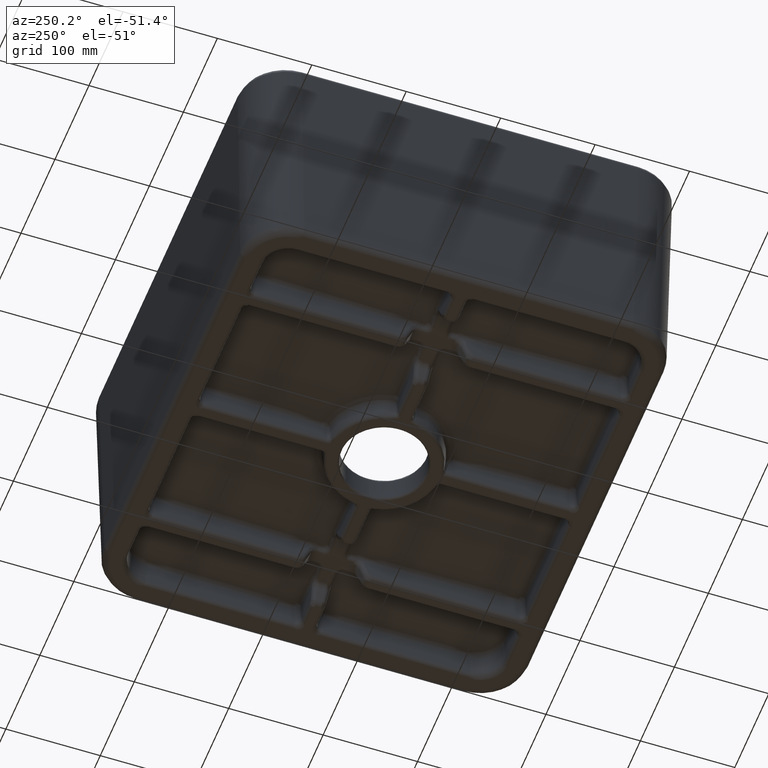
[diagram: clean part render]
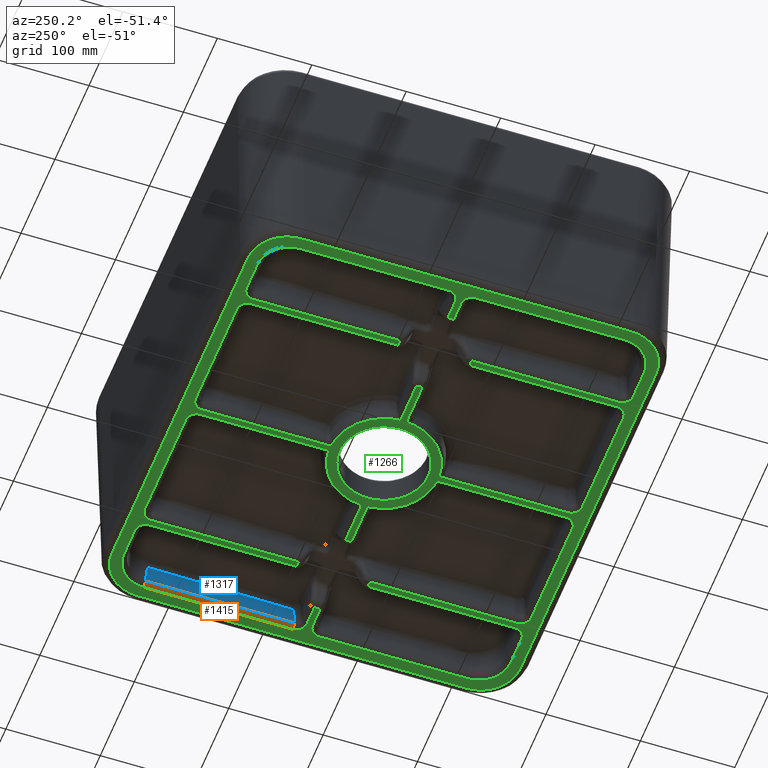
[diagram: same view with three faces highlighted in distinct colors, each labeled with its STEP entity id]
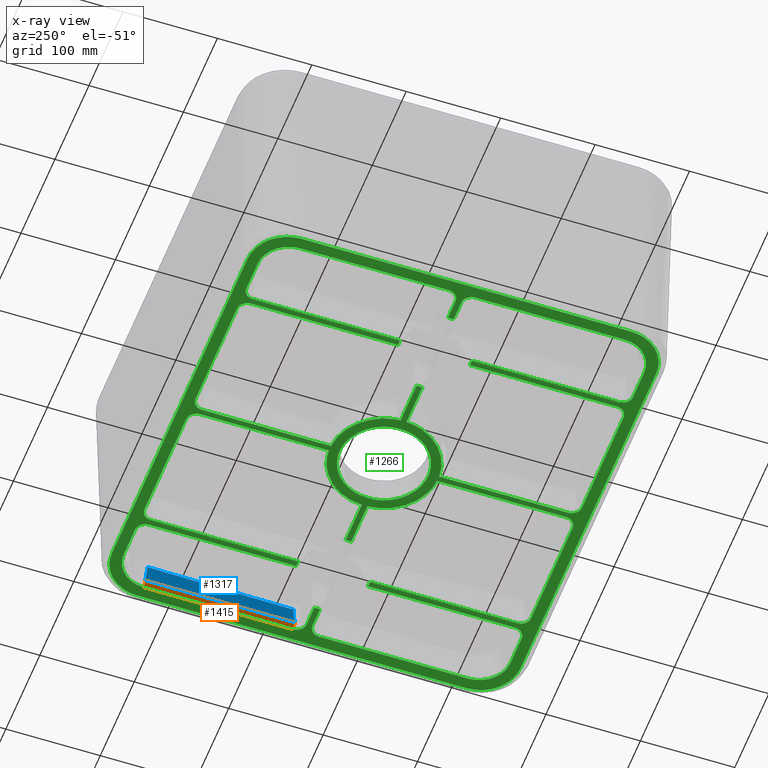
[diagram: x-ray of the same camera — body ghosted, the three highlighted faces saturated]
A machine part, auxiliary view with three faces highlighted in distinct colors.
The next image is the same camera in x-ray (body ghosted, the three faces saturated) — at least one of them is partly hidden behind the body in this view.
Their STEP definitions:

[orange] entity #1415 — the highlighted cylindrical surface (edge-blend (fillet) strip) has radius 5 mm, axis along (-0, -1, 0).
#189=CYLINDRICAL_SURFACE('',#7075,5.);
#329=CIRCLE('',#7072,5.);
#331=CIRCLE('',#7074,5.);
#968=FACE_OUTER_BOUND('',#1934,.T.);
#1415=ADVANCED_FACE('',(#968),#189,.T.);
#1934=EDGE_LOOP('',(#3532,#3533,#3534,#3535));
#3532=ORIENTED_EDGE('',*,*,#5912,.F.);
#3533=ORIENTED_EDGE('',*,*,#5408,.T.);
#3534=ORIENTED_EDGE('',*,*,#5914,.T.);
#3535=ORIENTED_EDGE('',*,*,#5725,.T.);
#4816=VERTEX_POINT('',#8759);
#4817=VERTEX_POINT('',#8761);
#5094=VERTEX_POINT('',#10689);
#5096=VERTEX_POINT('',#10692);
#5408=EDGE_CURVE('',#4817,#4816,#6439,.T.);
#5725=EDGE_CURVE('',#5096,#5094,#6553,.T.);
#5912=EDGE_CURVE('',#4817,#5094,#329,.T.);
#5914=EDGE_CURVE('',#4816,#5096,#331,.T.);
#6439=LINE('',#8760,#6634);
#6553=LINE('',#10691,#6748);
#6634=VECTOR('',#7411,1.);
#6748=VECTOR('',#7745,1.);
#7072=AXIS2_PLACEMENT_3D('',#12616,#8032,#8033);
#7074=AXIS2_PLACEMENT_3D('',#12666,#8036,#8037);
#7075=AXIS2_PLACEMENT_3D('',#12667,#8038,#8039);
#7411=DIRECTION('',(-1.10930001209168E-015,-1.,0.));
#7745=DIRECTION('',(1.10930001209168E-015,1.,9.29182299967479E-035));
#8032=DIRECTION('',(1.39307987027015E-015,1.,0.));
#8033=DIRECTION('',(-1.,0.,0.));
#8036=DIRECTION('',(0.,1.,0.));
#8037=DIRECTION('',(0.,0.,1.));
#8038=DIRECTION('',(-1.10930001209168E-015,-1.,0.));
#8039=DIRECTION('',(-1.,1.10930001209168E-015,0.));
#8759=CARTESIAN_POINT('',(610.683026407065,242.567075421475,-254.));
#8760=CARTESIAN_POINT('',(610.683026407065,242.167757801103,-254.));
#8761=CARTESIAN_POINT('',(610.683026407066,400.473644341292,-254.));
#10689=CARTESIAN_POINT('',(605.702052916607,400.473644341292,-249.435778713738));
#10691=CARTESIAN_POINT('',(605.702052916607,400.872957873291,-249.435778713738));
#10692=CARTESIAN_POINT('',(605.702052916607,242.567075421475,-249.435778713738));
#12616=CARTESIAN_POINT('',(610.683026407066,400.473644341292,-249.));
#12666=CARTESIAN_POINT('',(610.683026407065,242.567075421475,-249.));
#12667=CARTESIAN_POINT('',(610.683026407065,-6.66133814775094E-013,-249.));

[blue] entity #1317 — the highlighted planar face has unit normal (0.9962, -0, 0.0872).
#870=FACE_OUTER_BOUND('',#1836,.T.);
#1317=ADVANCED_FACE('',(#870),#1736,.F.);
#1736=PLANE('',#6939);
#1836=EDGE_LOOP('',(#3114,#3115,#3116,#3117));
#2357=B_SPLINE_CURVE_WITH_KNOTS('',3,(#10695,#10696,#10697,#10698),
 .UNSPECIFIED.,.F.,.F.,(4,4),(0.,1.),.UNSPECIFIED.);
#3114=ORIENTED_EDGE('',*,*,#5724,.F.);
#3115=ORIENTED_EDGE('',*,*,#5725,.F.);
#3116=ORIENTED_EDGE('',*,*,#5726,.F.);
#3117=ORIENTED_EDGE('',*,*,#5727,.F.);
#5094=VERTEX_POINT('',#10689);
#5095=VERTEX_POINT('',#10690);
#5096=VERTEX_POINT('',#10692);
#5097=VERTEX_POINT('',#10694);
#5724=EDGE_CURVE('',#5094,#5095,#6552,.T.);
#5725=EDGE_CURVE('',#5096,#5094,#6553,.T.);
#5726=EDGE_CURVE('',#5097,#5096,#6554,.T.);
#5727=EDGE_CURVE('',#5095,#5097,#2357,.T.);
#6552=LINE('',#10688,#6747);
#6553=LINE('',#10691,#6748);
#6554=LINE('',#10693,#6749);
#6747=VECTOR('',#7744,1.);
#6748=VECTOR('',#7745,1.);
#6749=VECTOR('',#7746,1.);
#6939=AXIS2_PLACEMENT_3D('',#10699,#7747,#7748);
#7744=DIRECTION('',(-0.0868265938642476,-0.0868265938642475,0.992432509138967));
#7745=DIRECTION('',(1.10930001209168E-015,1.,9.29182299967479E-035));
#7746=DIRECTION('',(0.0868265938642474,-0.0868265938642475,-0.992432509138967));
#7747=DIRECTION('',(0.996194698091746,-1.10507879063884E-015,0.0871557427476581));
#7748=DIRECTION('',(0.0871557427476581,0.,-0.996194698091746));
#10688=CARTESIAN_POINT('',(604.314053629121,399.085645053806,-233.57087426158));
#10689=CARTESIAN_POINT('',(605.702052916607,400.473644341292,-249.435778713738));
#10690=CARTESIAN_POINT('',(603.924131881291,398.695723305976,-229.114048289898));
#10691=CARTESIAN_POINT('',(605.702052916607,400.872957873291,-249.435778713738));
#10692=CARTESIAN_POINT('',(605.702052916607,242.567075421475,-249.435778713738));
#10693=CARTESIAN_POINT('',(606.14643155562,242.122696782462,-254.51504979989));
#10694=CARTESIAN_POINT('',(604.100715619862,244.16841271822,-231.13240965758));
#10695=CARTESIAN_POINT('',(603.924131881291,398.695723305976,-229.114048289898));
#10696=CARTESIAN_POINT('',(604.020724179029,347.192295906985,-230.218103305089));
#10697=CARTESIAN_POINT('',(604.089541867393,295.684690190818,-231.004693082446));
#10698=CARTESIAN_POINT('',(604.100715619862,244.16841271822,-231.13240965758));
#10699=CARTESIAN_POINT('',(607.069610744543,28.4335864917668,-265.067036214098));

[green] entity #1266 — the highlighted planar face has unit normal (0, 0, 1).
#1266=ADVANCED_FACE('',(#1764,#1765,#1766,#1767),#1714,.F.);
#1714=PLANE('',#6852);
#1764=FACE_BOUND('',#1778,.T.);
#1765=FACE_BOUND('',#1779,.T.);
#1766=FACE_BOUND('',#1780,.T.);
#1767=FACE_BOUND('',#1781,.T.);
#1778=EDGE_LOOP('',(#2748,#2749,#2750,#2751,#2752,#2753,#2754,#2755,#2756,
#2757,#2758,#2759,#2760,#2761,#2762,#2763,#2764,#2765,#2766,#2767,#2768,
#2769,#2770,#2771,#2772,#2773,#2774,#2775,#2776,#2777,#2778,#2779));
#1779=EDGE_LOOP('',(#2780,#2781));
#1780=EDGE_LOOP('',(#2782,#2783,#2784,#2785,#2786,#2787,#2788,#2789,#2790,
#2791,#2792,#2793,#2794,#2795,#2796,#2797,#2798,#2799,#2800,#2801,#2802,
#2803,#2804,#2805,#2806,#2807,#2808,#2809,#2810,#2811,#2812,#2813));
#1781=EDGE_LOOP('',(#2814,#2815,#2816,#2817,#2818,#2819,#2820,#2821));
#2234=B_SPLINE_CURVE_WITH_KNOTS('',3,(#8782,#8783,#8784,#8785,#8786,#8787,
#8788,#8789,#8790,#8791,#8792,#8793,#8794,#8795),.UNSPECIFIED.,.F.,.F.,
(4,2,2,2,2,2,4),(0.,0.125000000000001,0.250000000000002,0.500000000000002,
0.625000000000002,0.750000000000001,1.),.UNSPECIFIED.);
#2235=B_SPLINE_CURVE_WITH_KNOTS('',3,(#8803,#8804,#8805,#8806,#8807,#8808,
#8809,#8810,#8811,#8812,#8813,#8814,#8815,#8816),.UNSPECIFIED.,.F.,.F.,
(4,2,2,2,2,2,4),(0.,0.125,0.250000000000001,0.500000000000002,0.625000000000002,
0.750000000000001,1.),.UNSPECIFIED.);
#2236=B_SPLINE_CURVE_WITH_KNOTS('',3,(#8841,#8842,#8843,#8844,#8845,#8846,
#8847,#8848,#8849,#8850,#8851,#8852,#8853,#8854,#8855,#8856,#8857,#8858,
#8859,#8860,#8861,#8862,#8863,#8864,#8865,#8866),.UNSPECIFIED.,.F.,.F.,
(4,2,2,2,2,2,2,2,2,2,2,2,4),(0.,0.125,0.187500000000001,0.250000000000001,
0.375000000000001,0.437500000000001,0.500000000000002,0.562500000000002,
0.625000000000002,0.750000000000001,0.812500000000001,0.875000000000001,
1.),.UNSPECIFIED.);
#2237=B_SPLINE_CURVE_WITH_KNOTS('',3,(#8869,#8870,#8871,#8872,#8873,#8874,
#8875,#8876,#8877,#8878,#8879,#8880,#8881,#8882,#8883,#8884,#8885,#8886,
#8887,#8888,#8889,#8890,#8891,#8892,#8893,#8894),.UNSPECIFIED.,.F.,.F.,
(4,2,2,2,2,2,2,2,2,2,2,2,4),(0.,0.125000000000001,0.187500000000001,0.25,
0.375000000000001,0.4375,0.5,0.562499999999999,0.624999999999999,0.749999999999999,
0.812499999999999,0.874999999999999,1.),.UNSPECIFIED.);
#2238=B_SPLINE_CURVE_WITH_KNOTS('',3,(#8902,#8903,#8904,#8905,#8906,#8907,
#8908,#8909,#8910,#8911),.UNSPECIFIED.,.F.,.F.,(4,2,2,2,4),(0.,0.25,0.5,
0.75,1.),.UNSPECIFIED.);
#2239=B_SPLINE_CURVE_WITH_KNOTS('',3,(#8967,#8968,#8969,#8970,#8971,#8972,
#8973,#8974,#8975,#8976),.UNSPECIFIED.,.F.,.F.,(4,2,2,2,4),(0.,0.25,0.5,
0.75,1.),.UNSPECIFIED.);
#2652=ELLIPSE('',#6828,11.0838771389538,11.);
#2653=ELLIPSE('',#6829,33.2516314168615,33.);
#2654=ELLIPSE('',#6830,11.0838771389538,11.);
#2655=ELLIPSE('',#6831,11.0838771389538,11.);
#2656=ELLIPSE('',#6832,11.0838771389538,11.);
#2657=ELLIPSE('',#6833,11.0838771389538,11.);
#2658=ELLIPSE('',#6834,11.0838771389538,11.);
#2659=ELLIPSE('',#6835,11.0838771389538,11.);
#2660=ELLIPSE('',#6836,33.2516314168615,33.);
#2661=ELLIPSE('',#6837,11.0838771389538,11.);
#2662=ELLIPSE('',#6838,11.0838771389538,11.);
#2663=ELLIPSE('',#6839,11.0838771389538,11.);
#2664=ELLIPSE('',#6840,11.0838771389538,11.);
#2665=ELLIPSE('',#6841,33.2516314168615,33.);
#2666=ELLIPSE('',#6842,11.0838771389538,11.);
#2667=ELLIPSE('',#6843,11.0838771389538,11.);
#2668=ELLIPSE('',#6844,33.2516314168615,33.);
#2669=ELLIPSE('',#6845,11.0838771389538,11.);
#2670=ELLIPSE('',#6846,11.0838771389538,11.);
#2671=ELLIPSE('',#6847,11.0838771389538,11.);
#2672=ELLIPSE('',#6848,42.0127945814241,42.);
#2673=ELLIPSE('',#6849,42.0127945814241,42.);
#2674=ELLIPSE('',#6850,42.0127945814241,42.);
#2675=ELLIPSE('',#6851,42.0127945814241,42.);
#2748=ORIENTED_EDGE('',*,*,#5404,.T.);
#2749=ORIENTED_EDGE('',*,*,#5405,.F.);
#2750=ORIENTED_EDGE('',*,*,#5406,.F.);
#2751=ORIENTED_EDGE('',*,*,#5407,.F.);
#2752=ORIENTED_EDGE('',*,*,#5408,.F.);
#2753=ORIENTED_EDGE('',*,*,#5409,.F.);
#2754=ORIENTED_EDGE('',*,*,#5410,.F.);
#2755=ORIENTED_EDGE('',*,*,#5411,.F.);
#2756=ORIENTED_EDGE('',*,*,#5412,.F.);
#2757=ORIENTED_EDGE('',*,*,#5413,.F.);
#2758=ORIENTED_EDGE('',*,*,#5414,.F.);
#2759=ORIENTED_EDGE('',*,*,#5415,.F.);
#2760=ORIENTED_EDGE('',*,*,#5416,.F.);
#2761=ORIENTED_EDGE('',*,*,#5417,.F.);
#2762=ORIENTED_EDGE('',*,*,#5418,.F.);
#2763=ORIENTED_EDGE('',*,*,#5419,.F.);
#2764=ORIENTED_EDGE('',*,*,#5420,.F.);
#2765=ORIENTED_EDGE('',*,*,#5421,.F.);
#2766=ORIENTED_EDGE('',*,*,#5422,.T.);
#2767=ORIENTED_EDGE('',*,*,#5423,.T.);
#2768=ORIENTED_EDGE('',*,*,#5424,.T.);
#2769=ORIENTED_EDGE('',*,*,#5425,.T.);
#2770=ORIENTED_EDGE('',*,*,#5426,.T.);
#2771=ORIENTED_EDGE('',*,*,#5427,.T.);
#2772=ORIENTED_EDGE('',*,*,#5428,.T.);
#2773=ORIENTED_EDGE('',*,*,#5429,.T.);
#2774=ORIENTED_EDGE('',*,*,#5430,.T.);
#2775=ORIENTED_EDGE('',*,*,#5431,.T.);
#2776=ORIENTED_EDGE('',*,*,#5432,.T.);
#2777=ORIENTED_EDGE('',*,*,#5433,.T.);
#2778=ORIENTED_EDGE('',*,*,#5434,.T.);
#2779=ORIENTED_EDGE('',*,*,#5435,.T.);
#2780=ORIENTED_EDGE('',*,*,#5436,.T.);
#2781=ORIENTED_EDGE('',*,*,#5437,.F.);
#2782=ORIENTED_EDGE('',*,*,#5438,.T.);
#2783=ORIENTED_EDGE('',*,*,#5439,.F.);
#2784=ORIENTED_EDGE('',*,*,#5440,.F.);
#2785=ORIENTED_EDGE('',*,*,#5441,.F.);
#2786=ORIENTED_EDGE('',*,*,#5442,.F.);
#2787=ORIENTED_EDGE('',*,*,#5443,.F.);
#2788=ORIENTED_EDGE('',*,*,#5444,.F.);
#2789=ORIENTED_EDGE('',*,*,#5445,.F.);
#2790=ORIENTED_EDGE('',*,*,#5446,.F.);
#2791=ORIENTED_EDGE('',*,*,#5447,.F.);
#2792=ORIENTED_EDGE('',*,*,#5448,.F.);
#2793=ORIENTED_EDGE('',*,*,#5449,.F.);
#2794=ORIENTED_EDGE('',*,*,#5450,.F.);
#2795=ORIENTED_EDGE('',*,*,#5451,.F.);
#2796=ORIENTED_EDGE('',*,*,#5452,.F.);
#2797=ORIENTED_EDGE('',*,*,#5453,.F.);
#2798=ORIENTED_EDGE('',*,*,#5454,.F.);
#2799=ORIENTED_EDGE('',*,*,#5455,.F.);
#2800=ORIENTED_EDGE('',*,*,#5456,.T.);
#2801=ORIENTED_EDGE('',*,*,#5457,.T.);
#2802=ORIENTED_EDGE('',*,*,#5458,.T.);
#2803=ORIENTED_EDGE('',*,*,#5459,.T.);
#2804=ORIENTED_EDGE('',*,*,#5460,.T.);
#2805=ORIENTED_EDGE('',*,*,#5461,.T.);
#2806=ORIENTED_EDGE('',*,*,#5462,.T.);
#2807=ORIENTED_EDGE('',*,*,#5463,.T.);
#2808=ORIENTED_EDGE('',*,*,#5464,.T.);
#2809=ORIENTED_EDGE('',*,*,#5465,.T.);
#2810=ORIENTED_EDGE('',*,*,#5466,.T.);
#2811=ORIENTED_EDGE('',*,*,#5467,.T.);
#2812=ORIENTED_EDGE('',*,*,#5468,.T.);
#2813=ORIENTED_EDGE('',*,*,#5469,.T.);
#2814=ORIENTED_EDGE('',*,*,#5470,.F.);
#2815=ORIENTED_EDGE('',*,*,#5471,.T.);
#2816=ORIENTED_EDGE('',*,*,#5472,.T.);
#2817=ORIENTED_EDGE('',*,*,#5473,.T.);
#2818=ORIENTED_EDGE('',*,*,#5474,.F.);
#2819=ORIENTED_EDGE('',*,*,#5475,.F.);
#2820=ORIENTED_EDGE('',*,*,#5476,.F.);
#2821=ORIENTED_EDGE('',*,*,#5477,.F.);
#4812=VERTEX_POINT('',#8752);
#4813=VERTEX_POINT('',#8753);
#4814=VERTEX_POINT('',#8755);
#4815=VERTEX_POINT('',#8757);
#4816=VERTEX_POINT('',#8759);
#4817=VERTEX_POINT('',#8761);
#4818=VERTEX_POINT('',#8763);
#4819=VERTEX_POINT('',#8765);
#4820=VERTEX_POINT('',#8767);
#4821=VERTEX_POINT('',#8769);
#4822=VERTEX_POINT('',#8771);
#4823=VERTEX_POINT('',#8773);
#4824=VERTEX_POINT('',#8775);
#4825=VERTEX_POINT('',#8777);
#4826=VERTEX_POINT('',#8779);
#4827=VERTEX_POINT('',#8781);
#4828=VERTEX_POINT('',#8796);
#4829=VERTEX_POINT('',#8798);
#4830=VERTEX_POINT('',#8800);
#4831=VERTEX_POINT('',#8802);
#4832=VERTEX_POINT('',#8817);
#4833=VERTEX_POINT('',#8819);
#4834=VERTEX_POINT('',#8821);
#4835=VERTEX_POINT('',#8823);
#4836=VERTEX_POINT('',#8825);
#4837=VERTEX_POINT('',#8827);
#4838=VERTEX_POINT('',#8829);
#4839=VERTEX_POINT('',#8831);
#4840=VERTEX_POINT('',#8833);
#4841=VERTEX_POINT('',#8835);
#4842=VERTEX_POINT('',#8837);
#4843=VERTEX_POINT('',#8839);
#4844=VERTEX_POINT('',#8867);
#4845=VERTEX_POINT('',#8868);
#4846=VERTEX_POINT('',#8896);
#4847=VERTEX_POINT('',#8897);
#4848=VERTEX_POINT('',#8899);
#4849=VERTEX_POINT('',#8901);
#4850=VERTEX_POINT('',#8912);
#4851=VERTEX_POINT('',#8914);
#4852=VERTEX_POINT('',#8916);
#4853=VERTEX_POINT('',#8918);
#4854=VERTEX_POINT('',#8920);
#4855=VERTEX_POINT('',#8922);
#4856=VERTEX_POINT('',#8924);
#4857=VERTEX_POINT('',#8926);
#4858=VERTEX_POINT('',#8928);
#4859=VERTEX_POINT('',#8930);
#4860=VERTEX_POINT('',#8932);
#4861=VERTEX_POINT('',#8934);
#4862=VERTEX_POINT('',#8936);
#4863=VERTEX_POINT('',#8938);
#4864=VERTEX_POINT('',#8940);
#4865=VERTEX_POINT('',#8942);
#4866=VERTEX_POINT('',#8944);
#4867=VERTEX_POINT('',#8946);
#4868=VERTEX_POINT('',#8948);
#4869=VERTEX_POINT('',#8950);
#4870=VERTEX_POINT('',#8952);
#4871=VERTEX_POINT('',#8954);
#4872=VERTEX_POINT('',#8956);
#4873=VERTEX_POINT('',#8958);
#4874=VERTEX_POINT('',#8960);
#4875=VERTEX_POINT('',#8962);
#4876=VERTEX_POINT('',#8964);
#4877=VERTEX_POINT('',#8966);
#4878=VERTEX_POINT('',#8978);
#4879=VERTEX_POINT('',#8979);
#4880=VERTEX_POINT('',#8981);
#4881=VERTEX_POINT('',#8983);
#4882=VERTEX_POINT('',#8985);
#4883=VERTEX_POINT('',#8987);
#4884=VERTEX_POINT('',#8989);
#4885=VERTEX_POINT('',#8991);
#5404=EDGE_CURVE('',#4812,#4813,#6436,.T.);
#5405=EDGE_CURVE('',#4814,#4813,#6437,.T.);
#5406=EDGE_CURVE('',#4815,#4814,#6438,.T.);
#5407=EDGE_CURVE('',#4816,#4815,#2652,.T.);
#5408=EDGE_CURVE('',#4817,#4816,#6439,.T.);
#5409=EDGE_CURVE('',#4818,#4817,#2653,.T.);
#5410=EDGE_CURVE('',#4819,#4818,#6440,.T.);
#5411=EDGE_CURVE('',#4820,#4819,#2654,.T.);
#5412=EDGE_CURVE('',#4821,#4820,#6441,.T.);
#5413=EDGE_CURVE('',#4822,#4821,#6442,.T.);
#5414=EDGE_CURVE('',#4823,#4822,#6443,.T.);
#5415=EDGE_CURVE('',#4824,#4823,#2655,.T.);
#5416=EDGE_CURVE('',#4825,#4824,#6444,.T.);
#5417=EDGE_CURVE('',#4826,#4825,#2656,.T.);
#5418=EDGE_CURVE('',#4827,#4826,#6445,.T.);
#5419=EDGE_CURVE('',#4828,#4827,#2234,.T.);
#5420=EDGE_CURVE('',#4829,#4828,#6446,.T.);
#5421=EDGE_CURVE('',#4830,#4829,#6447,.T.);
#5422=EDGE_CURVE('',#4830,#4831,#6448,.T.);
#5423=EDGE_CURVE('',#4831,#4832,#2235,.T.);
#5424=EDGE_CURVE('',#4832,#4833,#6449,.T.);
#5425=EDGE_CURVE('',#4833,#4834,#2657,.T.);
#5426=EDGE_CURVE('',#4834,#4835,#6450,.T.);
#5427=EDGE_CURVE('',#4835,#4836,#2658,.T.);
#5428=EDGE_CURVE('',#4836,#4837,#6451,.T.);
#5429=EDGE_CURVE('',#4837,#4838,#6452,.T.);
#5430=EDGE_CURVE('',#4838,#4839,#6453,.T.);
#5431=EDGE_CURVE('',#4839,#4840,#2659,.T.);
#5432=EDGE_CURVE('',#4840,#4841,#6454,.T.);
#5433=EDGE_CURVE('',#4841,#4842,#2660,.T.);
#5434=EDGE_CURVE('',#4842,#4843,#6455,.T.);
#5435=EDGE_CURVE('',#4843,#4812,#2661,.T.);
#5436=EDGE_CURVE('',#4844,#4845,#2236,.T.);
#5437=EDGE_CURVE('',#4844,#4845,#2237,.T.);
#5438=EDGE_CURVE('',#4846,#4847,#6456,.T.);
#5439=EDGE_CURVE('',#4848,#4847,#6457,.T.);
#5440=EDGE_CURVE('',#4849,#4848,#6458,.T.);
#5441=EDGE_CURVE('',#4850,#4849,#2238,.T.);
#5442=EDGE_CURVE('',#4851,#4850,#6459,.T.);
#5443=EDGE_CURVE('',#4852,#4851,#2662,.T.);
#5444=EDGE_CURVE('',#4853,#4852,#6460,.T.);
#5445=EDGE_CURVE('',#4854,#4853,#2663,.T.);
#5446=EDGE_CURVE('',#4855,#4854,#6461,.T.);
#5447=EDGE_CURVE('',#4856,#4855,#6462,.T.);
#5448=EDGE_CURVE('',#4857,#4856,#6463,.T.);
#5449=EDGE_CURVE('',#4858,#4857,#2664,.T.);
#5450=EDGE_CURVE('',#4859,#4858,#6464,.T.);
#5451=EDGE_CURVE('',#4860,#4859,#2665,.T.);
#5452=EDGE_CURVE('',#4861,#4860,#6465,.T.);
#5453=EDGE_CURVE('',#4862,#4861,#2666,.T.);
#5454=EDGE_CURVE('',#4863,#4862,#6466,.T.);
#5455=EDGE_CURVE('',#4864,#4863,#6467,.T.);
#5456=EDGE_CURVE('',#4864,#4865,#6468,.T.);
#5457=EDGE_CURVE('',#4865,#4866,#2667,.T.);
#5458=EDGE_CURVE('',#4866,#4867,#6469,.T.);
#5459=EDGE_CURVE('',#4867,#4868,#2668,.T.);
#5460=EDGE_CURVE('',#4868,#4869,#6470,.T.);
#5461=EDGE_CURVE('',#4869,#4870,#2669,.T.);
#5462=EDGE_CURVE('',#4870,#4871,#6471,.T.);
#5463=EDGE_CURVE('',#4871,#4872,#6472,.T.);
#5464=EDGE_CURVE('',#4872,#4873,#6473,.T.);
#5465=EDGE_CURVE('',#4873,#4874,#2670,.T.);
#5466=EDGE_CURVE('',#4874,#4875,#6474,.T.);
#5467=EDGE_CURVE('',#4875,#4876,#2671,.T.);
#5468=EDGE_CURVE('',#4876,#4877,#6475,.T.);
#5469=EDGE_CURVE('',#4877,#4846,#2239,.T.);
#5470=EDGE_CURVE('',#4878,#4879,#6476,.T.);
#5471=EDGE_CURVE('',#4878,#4880,#2672,.T.);
#5472=EDGE_CURVE('',#4880,#4881,#6477,.T.);
#5473=EDGE_CURVE('',#4881,#4882,#2673,.T.);
#5474=EDGE_CURVE('',#4883,#4882,#6478,.T.);
#5475=EDGE_CURVE('',#4884,#4883,#2674,.T.);
#5476=EDGE_CURVE('',#4885,#4884,#6479,.T.);
#5477=EDGE_CURVE('',#4879,#4885,#2675,.T.);
#6436=LINE('',#8751,#6631);
#6437=LINE('',#8754,#6632);
#6438=LINE('',#8756,#6633);
#6439=LINE('',#8760,#6634);
#6440=LINE('',#8764,#6635);
#6441=LINE('',#8768,#6636);
#6442=LINE('',#8770,#6637);
#6443=LINE('',#8772,#6638);
#6444=LINE('',#8776,#6639);
#6445=LINE('',#8780,#6640);
#6446=LINE('',#8797,#6641);
#6447=LINE('',#8799,#6642);
#6448=LINE('',#8801,#6643);
#6449=LINE('',#8818,#6644);
#6450=LINE('',#8822,#6645);
#6451=LINE('',#8826,#6646);
#6452=LINE('',#8828,#6647);
#6453=LINE('',#8830,#6648);
#6454=LINE('',#8834,#6649);
#6455=LINE('',#8838,#6650);
#6456=LINE('',#8895,#6651);
#6457=LINE('',#8898,#6652);
#6458=LINE('',#8900,#6653);
#6459=LINE('',#8913,#6654);
#6460=LINE('',#8917,#6655);
#6461=LINE('',#8921,#6656);
#6462=LINE('',#8923,#6657);
#6463=LINE('',#8925,#6658);
#6464=LINE('',#8929,#6659);
#6465=LINE('',#8933,#6660);
#6466=LINE('',#8937,#6661);
#6467=LINE('',#8939,#6662);
#6468=LINE('',#8941,#6663);
#6469=LINE('',#8945,#6664);
#6470=LINE('',#8949,#6665);
#6471=LINE('',#8953,#6666);
#6472=LINE('',#8955,#6667);
#6473=LINE('',#8957,#6668);
#6474=LINE('',#8961,#6669);
#6475=LINE('',#8965,#6670);
#6476=LINE('',#8977,#6671);
#6477=LINE('',#8982,#6672);
#6478=LINE('',#8986,#6673);
#6479=LINE('',#8990,#6674);
#6631=VECTOR('',#7406,1.);
#6632=VECTOR('',#7407,1.);
#6633=VECTOR('',#7408,1.);
#6634=VECTOR('',#7411,1.);
#6635=VECTOR('',#7414,1.);
#6636=VECTOR('',#7417,1.);
#6637=VECTOR('',#7418,1.);
#6638=VECTOR('',#7419,1.);
#6639=VECTOR('',#7422,1.);
#6640=VECTOR('',#7425,1.);
#6641=VECTOR('',#7426,1.);
#6642=VECTOR('',#7427,1.);
#6643=VECTOR('',#7428,1.);
#6644=VECTOR('',#7429,1.);
#6645=VECTOR('',#7432,1.);
#6646=VECTOR('',#7435,1.);
#6647=VECTOR('',#7436,1.);
#6648=VECTOR('',#7437,1.);
#6649=VECTOR('',#7440,1.);
#6650=VECTOR('',#7443,1.);
#6651=VECTOR('',#7446,1.);
#6652=VECTOR('',#7447,1.);
#6653=VECTOR('',#7448,1.);
#6654=VECTOR('',#7449,1.);
#6655=VECTOR('',#7452,1.);
#6656=VECTOR('',#7455,1.);
#6657=VECTOR('',#7456,1.);
#6658=VECTOR('',#7457,1.);
#6659=VECTOR('',#7460,1.);
#6660=VECTOR('',#7463,1.);
#6661=VECTOR('',#7466,1.);
#6662=VECTOR('',#7467,1.);
#6663=VECTOR('',#7468,1.);
#6664=VECTOR('',#7471,1.);
#6665=VECTOR('',#7474,1.);
#6666=VECTOR('',#7477,1.);
#6667=VECTOR('',#7478,1.);
#6668=VECTOR('',#7479,1.);
#6669=VECTOR('',#7482,1.);
#6670=VECTOR('',#7485,1.);
#6671=VECTOR('',#7486,1.);
#6672=VECTOR('',#7489,1.);
#6673=VECTOR('',#7492,1.);
#6674=VECTOR('',#7495,1.);
#6828=AXIS2_PLACEMENT_3D('',#8758,#7409,#7410);
#6829=AXIS2_PLACEMENT_3D('',#8762,#7412,#7413);
#6830=AXIS2_PLACEMENT_3D('',#8766,#7415,#7416);
#6831=AXIS2_PLACEMENT_3D('',#8774,#7420,#7421);
#6832=AXIS2_PLACEMENT_3D('',#8778,#7423,#7424);
#6833=AXIS2_PLACEMENT_3D('',#8820,#7430,#7431);
#6834=AXIS2_PLACEMENT_3D('',#8824,#7433,#7434);
#6835=AXIS2_PLACEMENT_3D('',#8832,#7438,#7439);
#6836=AXIS2_PLACEMENT_3D('',#8836,#7441,#7442);
#6837=AXIS2_PLACEMENT_3D('',#8840,#7444,#7445);
#6838=AXIS2_PLACEMENT_3D('',#8915,#7450,#7451);
#6839=AXIS2_PLACEMENT_3D('',#8919,#7453,#7454);
#6840=AXIS2_PLACEMENT_3D('',#8927,#7458,#7459);
#6841=AXIS2_PLACEMENT_3D('',#8931,#7461,#7462);
#6842=AXIS2_PLACEMENT_3D('',#8935,#7464,#7465);
#6843=AXIS2_PLACEMENT_3D('',#8943,#7469,#7470);
#6844=AXIS2_PLACEMENT_3D('',#8947,#7472,#7473);
#6845=AXIS2_PLACEMENT_3D('',#8951,#7475,#7476);
#6846=AXIS2_PLACEMENT_3D('',#8959,#7480,#7481);
#6847=AXIS2_PLACEMENT_3D('',#8963,#7483,#7484);
#6848=AXIS2_PLACEMENT_3D('',#8980,#7487,#7488);
#6849=AXIS2_PLACEMENT_3D('',#8984,#7490,#7491);
#6850=AXIS2_PLACEMENT_3D('',#8988,#7493,#7494);
#6851=AXIS2_PLACEMENT_3D('',#8992,#7496,#7497);
#6852=AXIS2_PLACEMENT_3D('',#8993,#7498,#7499);
#7406=DIRECTION('',(-1.,0.,0.));
#7407=DIRECTION('',(0.,-1.,0.));
#7408=DIRECTION('',(-1.,0.,0.));
#7409=DIRECTION('',(0.,0.,-1.));
#7410=DIRECTION('',(-0.707106781186547,0.707106781186548,0.));
#7411=DIRECTION('',(-1.10930001209168E-015,-1.,0.));
#7412=DIRECTION('',(0.,0.,-1.));
#7413=DIRECTION('',(-0.707106781186548,-0.707106781186547,0.));
#7414=DIRECTION('',(1.,0.,0.));
#7415=DIRECTION('',(0.,0.,-1.));
#7416=DIRECTION('',(0.707106781186548,-0.707106781186548,0.));
#7417=DIRECTION('',(0.,1.,0.));
#7418=DIRECTION('',(1.,0.,0.));
#7419=DIRECTION('',(0.,-1.,0.));
#7420=DIRECTION('',(0.,0.,-1.));
#7421=DIRECTION('',(-0.707106781186548,-0.707106781186548,0.));
#7422=DIRECTION('',(1.,0.,0.));
#7423=DIRECTION('',(0.,0.,-1.));
#7424=DIRECTION('',(0.707106781186548,-0.707106781186548,0.));
#7425=DIRECTION('',(0.,1.,0.));
#7426=DIRECTION('',(-1.,0.,0.));
#7427=DIRECTION('',(0.,1.,0.));
#7428=DIRECTION('',(-1.,0.,0.));
#7429=DIRECTION('',(0.,-1.,0.));
#7430=DIRECTION('',(0.,0.,1.));
#7431=DIRECTION('',(0.707106781186548,0.707106781186548,0.));
#7432=DIRECTION('',(1.,0.,0.));
#7433=DIRECTION('',(0.,0.,1.));
#7434=DIRECTION('',(-0.707106781186548,0.707106781186548,0.));
#7435=DIRECTION('',(0.,1.,0.));
#7436=DIRECTION('',(1.,0.,0.));
#7437=DIRECTION('',(0.,-1.,0.));
#7438=DIRECTION('',(0.,0.,1.));
#7439=DIRECTION('',(0.707106781186548,0.707106781186548,0.));
#7440=DIRECTION('',(1.,0.,0.));
#7441=DIRECTION('',(0.,0.,1.));
#7442=DIRECTION('',(-0.707106781186548,0.707106781186547,0.));
#7443=DIRECTION('',(-1.10930001209168E-015,1.,0.));
#7444=DIRECTION('',(0.,0.,1.));
#7445=DIRECTION('',(-0.707106781186547,-0.707106781186548,0.));
#7446=DIRECTION('',(-1.,0.,0.));
#7447=DIRECTION('',(0.,-1.,0.));
#7448=DIRECTION('',(-1.,0.,0.));
#7449=DIRECTION('',(0.,-1.,0.));
#7450=DIRECTION('',(0.,0.,-1.));
#7451=DIRECTION('',(-0.707106781186548,-0.707106781186548,0.));
#7452=DIRECTION('',(1.,0.,0.));
#7453=DIRECTION('',(0.,0.,-1.));
#7454=DIRECTION('',(0.707106781186548,-0.707106781186548,0.));
#7455=DIRECTION('',(0.,1.,0.));
#7456=DIRECTION('',(1.,0.,0.));
#7457=DIRECTION('',(0.,-1.,0.));
#7458=DIRECTION('',(0.,0.,-1.));
#7459=DIRECTION('',(-0.707106781186548,-0.707106781186548,0.));
#7460=DIRECTION('',(1.,0.,0.));
#7461=DIRECTION('',(0.,0.,-1.));
#7462=DIRECTION('',(0.707106781186548,-0.707106781186548,0.));
#7463=DIRECTION('',(-3.46656253778651E-017,1.,0.));
#7464=DIRECTION('',(0.,0.,-1.));
#7465=DIRECTION('',(0.707106781186548,0.707106781186548,0.));
#7466=DIRECTION('',(-1.,0.,0.));
#7467=DIRECTION('',(0.,1.,0.));
#7468=DIRECTION('',(-1.,0.,0.));
#7469=DIRECTION('',(0.,0.,1.));
#7470=DIRECTION('',(0.707106781186548,-0.707106781186548,0.));
#7471=DIRECTION('',(-3.46656253778651E-017,-1.,0.));
#7472=DIRECTION('',(0.,0.,1.));
#7473=DIRECTION('',(0.707106781186548,0.707106781186548,0.));
#7474=DIRECTION('',(1.,0.,0.));
#7475=DIRECTION('',(0.,0.,1.));
#7476=DIRECTION('',(-0.707106781186548,0.707106781186548,0.));
#7477=DIRECTION('',(0.,1.,0.));
#7478=DIRECTION('',(1.,0.,0.));
#7479=DIRECTION('',(0.,-1.,0.));
#7480=DIRECTION('',(0.,0.,1.));
#7481=DIRECTION('',(0.707106781186548,0.707106781186548,0.));
#7482=DIRECTION('',(1.,0.,0.));
#7483=DIRECTION('',(0.,0.,1.));
#7484=DIRECTION('',(-0.707106781186548,0.707106781186548,0.));
#7485=DIRECTION('',(0.,1.,0.));
#7486=DIRECTION('',(0.,1.,0.));
#7487=DIRECTION('',(0.,0.,-1.));
#7488=DIRECTION('',(0.707106781186548,-0.707106781186548,0.));
#7489=DIRECTION('',(-1.,0.,0.));
#7490=DIRECTION('',(0.,0.,-1.));
#7491=DIRECTION('',(0.707106781186548,0.707106781186548,0.));
#7492=DIRECTION('',(0.,-1.,0.));
#7493=DIRECTION('',(0.,0.,1.));
#7494=DIRECTION('',(0.707106781186548,-0.707106781186548,0.));
#7495=DIRECTION('',(-1.,0.,0.));
#7496=DIRECTION('',(0.,0.,1.));
#7497=DIRECTION('',(0.707106781186548,0.707106781186548,0.));
#7498=DIRECTION('',(0.,0.,1.));
#7499=DIRECTION('',(1.,0.,0.));
#8751=CARTESIAN_POINT('',(577.484923632965,225.591066257534,-254.));
#8752=CARTESIAN_POINT('',(599.724884728056,225.591066257534,-254.));
#8753=CARTESIAN_POINT('',(577.484923632965,225.591066257534,-254.));
#8754=CARTESIAN_POINT('',(577.484923632965,221.009410888954,-254.));
#8755=CARTESIAN_POINT('',(577.484923632965,231.608933742466,-254.));
#8756=CARTESIAN_POINT('',(577.484923632965,231.608933742466,-254.));
#8757=CARTESIAN_POINT('',(599.724884728056,231.608933742466,-254.));
#8758=CARTESIAN_POINT('',(599.641008194089,242.650951955443,-254.));
#8759=CARTESIAN_POINT('',(610.683026407065,242.567075421475,-254.));
#8760=CARTESIAN_POINT('',(610.683026407065,242.167757801103,-254.));
#8761=CARTESIAN_POINT('',(610.683026407066,400.473644341292,-254.));
#8762=CARTESIAN_POINT('',(577.556971768135,400.222014739389,-254.));
#8763=CARTESIAN_POINT('',(577.808601370038,433.34806937832,-254.));
#8764=CARTESIAN_POINT('',(578.20791899041,433.34806937832,-254.));
#8765=CARTESIAN_POINT('',(544.776083019749,433.34806937832,-254.));
#8766=CARTESIAN_POINT('',(544.859959553716,422.306051165343,-254.));
#8767=CARTESIAN_POINT('',(533.817941340739,422.389927699311,-254.));
#8768=CARTESIAN_POINT('',(533.817941340739,422.789245319682,-254.));
#8769=CARTESIAN_POINT('',(533.817941340739,266.533270098507,-254.));
#8770=CARTESIAN_POINT('',(538.399597210827,266.533270098507,-254.));
#8771=CARTESIAN_POINT('',(527.800074357315,266.533270098507,-254.));
#8772=CARTESIAN_POINT('',(527.800074357315,266.533270098507,-254.));
#8773=CARTESIAN_POINT('',(527.800074357315,422.389927699311,-254.));
#8774=CARTESIAN_POINT('',(516.758056144338,422.306051165343,-254.));
#8775=CARTESIAN_POINT('',(516.841932678306,433.34806937832,-254.));
#8776=CARTESIAN_POINT('',(517.241250298678,433.34806937832,-254.));
#8777=CARTESIAN_POINT('',(394.967074896916,433.34806937832,-254.));
#8778=CARTESIAN_POINT('',(395.050951430884,422.306051165343,-254.));
#8779=CARTESIAN_POINT('',(384.008933217907,422.38992769931,-254.));
#8780=CARTESIAN_POINT('',(384.008933217907,422.789245319682,-254.));
#8781=CARTESIAN_POINT('',(384.008933217907,285.886271019235,-254.));
#8782=CARTESIAN_POINT('',(438.28638448916,231.608933742466,-254.));
#8783=CARTESIAN_POINT('',(438.101737968618,235.135895779673,-254.));
#8784=CARTESIAN_POINT('',(437.595305223539,238.606268190576,-254.));
#8785=CARTESIAN_POINT('',(435.948575711414,245.43554109284,-254.));
#8786=CARTESIAN_POINT('',(434.806454045338,248.791316944125,-254.));
#8787=CARTESIAN_POINT('',(430.548333459987,258.339503226567,-254.));
#8788=CARTESIAN_POINT('',(426.507889673503,264.225620258586,-254.));
#8789=CARTESIAN_POINT('',(419.043662223507,271.678828810787,-254.));
#8790=CARTESIAN_POINT('',(416.316502223063,273.939076726784,-254.));
#8791=CARTESIAN_POINT('',(410.568738647711,277.880282521271,-254.));
#8792=CARTESIAN_POINT('',(407.528292000808,279.584428927321,-254.));
#8793=CARTESIAN_POINT('',(397.890169782272,283.870163202418,-254.));
#8794=CARTESIAN_POINT('',(391.062931714793,285.517092961176,-254.));
#8795=CARTESIAN_POINT('',(384.008933217907,285.886271019235,-254.));
#8796=CARTESIAN_POINT('',(438.28638448916,231.608933742466,-254.));
#8797=CARTESIAN_POINT('',(440.537666220506,231.608933742466,-254.));
#8798=CARTESIAN_POINT('',(485.730645627655,231.608933742466,-254.));
#8799=CARTESIAN_POINT('',(485.730645627655,236.190589612553,-254.));
#8800=CARTESIAN_POINT('',(485.730645627655,225.591066257534,-254.));
#8801=CARTESIAN_POINT('',(440.537666220506,225.591066257534,-254.));
#8802=CARTESIAN_POINT('',(438.28638448916,225.591066257534,-254.));
#8803=CARTESIAN_POINT('',(438.28638448916,225.591066257534,-254.));
#8804=CARTESIAN_POINT('',(438.101737968618,222.064104220327,-254.));
#8805=CARTESIAN_POINT('',(437.595305223539,218.593731809424,-254.));
#8806=CARTESIAN_POINT('',(435.948575711414,211.76445890716,-254.));
#8807=CARTESIAN_POINT('',(434.806454045337,208.408683055875,-254.));
#8808=CARTESIAN_POINT('',(430.548333459987,198.860496773433,-254.));
#8809=CARTESIAN_POINT('',(426.507889673503,192.974379741414,-254.));
#8810=CARTESIAN_POINT('',(419.043662223507,185.521171189213,-254.));
#8811=CARTESIAN_POINT('',(416.316502223063,183.260923273217,-254.));
#8812=CARTESIAN_POINT('',(410.568738647711,179.319717478729,-254.));
#8813=CARTESIAN_POINT('',(407.528292000808,177.615571072679,-254.));
#8814=CARTESIAN_POINT('',(397.890169782271,173.329836797582,-254.));
#8815=CARTESIAN_POINT('',(391.062931714793,171.682907038824,-254.));
#8816=CARTESIAN_POINT('',(384.008933217907,171.313728980765,-254.));
#8817=CARTESIAN_POINT('',(384.008933217907,171.313728980765,-254.));
#8818=CARTESIAN_POINT('',(384.008933217907,34.4107546803178,-254.));
#8819=CARTESIAN_POINT('',(384.008933217907,34.8100723006895,-254.));
#8820=CARTESIAN_POINT('',(395.050951430884,34.8939488346571,-254.));
#8821=CARTESIAN_POINT('',(394.967074896916,23.8519306216803,-254.));
#8822=CARTESIAN_POINT('',(517.241250298678,23.8519306216803,-254.));
#8823=CARTESIAN_POINT('',(516.841932678306,23.8519306216802,-254.));
#8824=CARTESIAN_POINT('',(516.758056144338,34.8939488346571,-254.));
#8825=CARTESIAN_POINT('',(527.800074357315,34.8100723006894,-254.));
#8826=CARTESIAN_POINT('',(527.800074357315,190.666729901493,-254.));
#8827=CARTESIAN_POINT('',(527.800074357315,190.666729901493,-254.));
#8828=CARTESIAN_POINT('',(538.399597210827,190.666729901493,-254.));
#8829=CARTESIAN_POINT('',(533.817941340739,190.666729901493,-254.));
#8830=CARTESIAN_POINT('',(533.817941340739,34.4107546803178,-254.));
#8831=CARTESIAN_POINT('',(533.817941340739,34.8100723006894,-254.));
#8832=CARTESIAN_POINT('',(544.859959553716,34.8939488346571,-254.));
#8833=CARTESIAN_POINT('',(544.776083019749,23.8519306216803,-254.));
#8834=CARTESIAN_POINT('',(578.20791899041,23.8519306216803,-254.));
#8835=CARTESIAN_POINT('',(577.808601370038,23.8519306216802,-254.));
#8836=CARTESIAN_POINT('',(577.556971768135,56.9779852606107,-254.));
#8837=CARTESIAN_POINT('',(610.683026407066,56.7263556587079,-254.));
#8838=CARTESIAN_POINT('',(610.683026407065,215.032242198897,-254.));
#8839=CARTESIAN_POINT('',(610.683026407065,214.632924578525,-254.));
#8840=CARTESIAN_POINT('',(599.641008194089,214.549048044557,-254.));
#8841=CARTESIAN_POINT('',(333.980952078213,228.599999749246,-254.));
#8842=CARTESIAN_POINT('',(333.980952078213,222.391161083228,-254.));
#8843=CARTESIAN_POINT('',(335.211649569318,216.269545144797,-254.));
#8844=CARTESIAN_POINT('',(338.745408871457,207.748238122385,-254.));
#8845=CARTESIAN_POINT('',(340.221083508649,204.993771403638,-254.));
#8846=CARTESIAN_POINT('',(343.628572732438,199.902430708721,-254.));
#8847=CARTESIAN_POINT('',(345.571564201256,197.532256322137,-254.));
#8848=CARTESIAN_POINT('',(352.141895743636,190.965544623869,-254.));
#8849=CARTESIAN_POINT('',(357.318433982998,187.513875993936,-254.));
#8850=CARTESIAN_POINT('',(365.873121546583,183.973861482025,-254.));
#8851=CARTESIAN_POINT('',(368.803625142956,183.086852165803,-254.));
#8852=CARTESIAN_POINT('',(374.819626255193,181.888104697368,-254.));
#8853=CARTESIAN_POINT('',(377.934026833755,181.580768681148,-254.));
#8854=CARTESIAN_POINT('',(384.071596645672,181.581135747428,-254.));
#8855=CARTESIAN_POINT('',(387.118264730165,181.878879436393,-254.));
#8856=CARTESIAN_POINT('',(393.166746007195,183.077845422691,-254.));
#8857=CARTESIAN_POINT('',(396.145433716933,183.981887468883,-254.));
#8858=CARTESIAN_POINT('',(404.630796307609,187.492173304848,-254.));
#8859=CARTESIAN_POINT('',(409.87855118871,190.992415925817,-254.));
#8860=CARTESIAN_POINT('',(416.381230560966,197.48188756131,-254.));
#8861=CARTESIAN_POINT('',(418.364906242976,199.892423797856,-254.));
#8862=CARTESIAN_POINT('',(421.78793607926,205.007513575195,-254.));
#8863=CARTESIAN_POINT('',(423.23317631792,207.705209993529,-254.));
#8864=CARTESIAN_POINT('',(426.773576677092,216.216909702958,-254.));
#8865=CARTESIAN_POINT('',(428.019047349016,222.466959599915,-254.));
#8866=CARTESIAN_POINT('',(428.019047316308,228.6,-254.));
#8867=CARTESIAN_POINT('',(333.980952078213,228.6,-254.));
#8868=CARTESIAN_POINT('',(428.019047316308,228.6,-254.));
#8869=CARTESIAN_POINT('',(333.980952078213,228.600000250754,-254.));
#8870=CARTESIAN_POINT('',(333.980952078213,234.808838916772,-254.));
#8871=CARTESIAN_POINT('',(335.211649569318,240.930454855204,-254.));
#8872=CARTESIAN_POINT('',(338.745408871457,249.451761877615,-254.));
#8873=CARTESIAN_POINT('',(340.221083508649,252.206228596362,-254.));
#8874=CARTESIAN_POINT('',(343.628572732438,257.297569291278,-254.));
#8875=CARTESIAN_POINT('',(345.571564201256,259.667743677863,-254.));
#8876=CARTESIAN_POINT('',(352.141895743636,266.234455376131,-254.));
#8877=CARTESIAN_POINT('',(357.318433982999,269.686124006065,-254.));
#8878=CARTESIAN_POINT('',(365.873121546583,273.226138517975,-254.));
#8879=CARTESIAN_POINT('',(368.803625142956,274.113147834196,-254.));
#8880=CARTESIAN_POINT('',(374.819626255193,275.311895302632,-254.));
#8881=CARTESIAN_POINT('',(377.934026833755,275.619231318852,-254.));
#8882=CARTESIAN_POINT('',(384.071596645672,275.618864252572,-254.));
#8883=CARTESIAN_POINT('',(387.118264730165,275.321120563607,-254.));
#8884=CARTESIAN_POINT('',(393.166746007195,274.122154577309,-254.));
#8885=CARTESIAN_POINT('',(396.145433716933,273.218112531117,-254.));
#8886=CARTESIAN_POINT('',(404.630796307609,269.707826695152,-254.));
#8887=CARTESIAN_POINT('',(409.87855118871,266.207584074183,-254.));
#8888=CARTESIAN_POINT('',(416.381230560966,259.71811243869,-254.));
#8889=CARTESIAN_POINT('',(418.364906242976,257.307576202144,-254.));
#8890=CARTESIAN_POINT('',(421.78793607926,252.192486424805,-254.));
#8891=CARTESIAN_POINT('',(423.23317631792,249.494790006471,-254.));
#8892=CARTESIAN_POINT('',(426.773576677092,240.983090297042,-254.));
#8893=CARTESIAN_POINT('',(428.019047349016,234.733040400084,-254.));
#8894=CARTESIAN_POINT('',(428.019047316308,228.6,-254.));
#8895=CARTESIAN_POINT('',(276.821043331826,225.591066257534,-254.));
#8896=CARTESIAN_POINT('',(323.714050620375,225.591066257534,-254.));
#8897=CARTESIAN_POINT('',(276.821043331826,225.591066257534,-254.));
#8898=CARTESIAN_POINT('',(276.821043331826,221.009410888954,-254.));
#8899=CARTESIAN_POINT('',(276.821043331826,231.608933742466,-254.));
#8900=CARTESIAN_POINT('',(276.821043331826,231.608933742466,-254.));
#8901=CARTESIAN_POINT('',(323.714050620375,231.608933742466,-254.));
#8902=CARTESIAN_POINT('',(377.991066176614,285.884768239653,-254.));
#8903=CARTESIAN_POINT('',(370.939719510065,285.511611074483,-254.));
#8904=CARTESIAN_POINT('',(364.129610343603,283.880560811288,-254.));
#8905=CARTESIAN_POINT('',(351.239870747839,278.145305258211,-254.));
#8906=CARTESIAN_POINT('',(345.452845962121,274.170322175982,-254.));
#8907=CARTESIAN_POINT('',(335.488255401803,264.223100418628,-254.));
#8908=CARTESIAN_POINT('',(331.450446519266,258.327702659797,-254.));
#8909=CARTESIAN_POINT('',(325.77247442161,245.611584256836,-254.));
#8910=CARTESIAN_POINT('',(324.084453477206,238.661274880449,-254.));
#8911=CARTESIAN_POINT('',(323.714050620375,231.608933742466,-254.));
#8912=CARTESIAN_POINT('',(377.991066176614,285.884768239653,-254.));
#8913=CARTESIAN_POINT('',(377.991066176614,288.13585421671,-254.));
#8914=CARTESIAN_POINT('',(377.991066176614,422.389927699311,-254.));
#8915=CARTESIAN_POINT('',(366.949047963638,422.306051165343,-254.));
#8916=CARTESIAN_POINT('',(367.032924497605,433.34806937832,-254.));
#8917=CARTESIAN_POINT('',(367.432242117977,433.34806937832,-254.));
#8918=CARTESIAN_POINT('',(245.158066716215,433.34806937832,-254.));
#8919=CARTESIAN_POINT('',(245.241943250183,422.306051165343,-254.));
#8920=CARTESIAN_POINT('',(234.199925037206,422.389927699311,-254.));
#8921=CARTESIAN_POINT('',(234.199925037206,422.789245319682,-254.));
#8922=CARTESIAN_POINT('',(234.199925037206,266.533270098507,-254.));
#8923=CARTESIAN_POINT('',(238.781580907293,266.533270098507,-254.));
#8924=CARTESIAN_POINT('',(228.182058053782,266.533270098507,-254.));
#8925=CARTESIAN_POINT('',(228.182058053782,266.533270098507,-254.));
#8926=CARTESIAN_POINT('',(228.182058053782,422.389927699311,-254.));
#8927=CARTESIAN_POINT('',(217.140039840805,422.306051165343,-254.));
#8928=CARTESIAN_POINT('',(217.223916374772,433.34806937832,-254.));
#8929=CARTESIAN_POINT('',(217.623233995144,433.34806937832,-254.));
#8930=CARTESIAN_POINT('',(184.191398629962,433.34806937832,-254.));
#8931=CARTESIAN_POINT('',(184.443028231865,400.222014739389,-254.));
#8932=CARTESIAN_POINT('',(151.316973592934,400.473644341292,-254.));
#8933=CARTESIAN_POINT('',(151.316973592934,400.872957974702,-254.));
#8934=CARTESIAN_POINT('',(151.316973592934,242.567075421475,-254.));
#8935=CARTESIAN_POINT('',(162.358991805911,242.650951955443,-254.));
#8936=CARTESIAN_POINT('',(162.275115271944,231.608933742466,-254.));
#8937=CARTESIAN_POINT('',(161.875797651572,231.608933742466,-254.));
#8938=CARTESIAN_POINT('',(184.515076367035,231.608933742466,-254.));
#8939=CARTESIAN_POINT('',(184.515076367035,236.190589612553,-254.));
#8940=CARTESIAN_POINT('',(184.515076367035,225.591066257534,-254.));
#8941=CARTESIAN_POINT('',(161.875797651572,225.591066257534,-254.));
#8942=CARTESIAN_POINT('',(162.275115271944,225.591066257534,-254.));
#8943=CARTESIAN_POINT('',(162.358991805911,214.549048044557,-254.));
#8944=CARTESIAN_POINT('',(151.316973592934,214.632924578525,-254.));
#8945=CARTESIAN_POINT('',(151.316973592934,56.3270420252979,-254.));
#8946=CARTESIAN_POINT('',(151.316973592934,56.7263556587078,-254.));
#8947=CARTESIAN_POINT('',(184.443028231865,56.9779852606106,-254.));
#8948=CARTESIAN_POINT('',(184.191398629962,23.8519306216802,-254.));
#8949=CARTESIAN_POINT('',(217.623233995144,23.8519306216803,-254.));
#8950=CARTESIAN_POINT('',(217.223916374772,23.8519306216803,-254.));
#8951=CARTESIAN_POINT('',(217.140039840805,34.8939488346571,-254.));
#8952=CARTESIAN_POINT('',(228.182058053782,34.8100723006894,-254.));
#8953=CARTESIAN_POINT('',(228.182058053782,190.666729901493,-254.));
#8954=CARTESIAN_POINT('',(228.182058053782,190.666729901493,-254.));
#8955=CARTESIAN_POINT('',(238.781580907293,190.666729901493,-254.));
#8956=CARTESIAN_POINT('',(234.199925037206,190.666729901493,-254.));
#8957=CARTESIAN_POINT('',(234.199925037206,34.4107546803178,-254.));
#8958=CARTESIAN_POINT('',(234.199925037206,34.8100723006895,-254.));
#8959=CARTESIAN_POINT('',(245.241943250183,34.8939488346571,-254.));
#8960=CARTESIAN_POINT('',(245.158066716215,23.8519306216803,-254.));
#8961=CARTESIAN_POINT('',(367.432242117977,23.8519306216803,-254.));
#8962=CARTESIAN_POINT('',(367.032924497605,23.8519306216803,-254.));
#8963=CARTESIAN_POINT('',(366.949047963638,34.8939488346571,-254.));
#8964=CARTESIAN_POINT('',(377.991066176614,34.8100723006894,-254.));
#8965=CARTESIAN_POINT('',(377.991066176614,169.06414578329,-254.));
#8966=CARTESIAN_POINT('',(377.991066176614,171.315231760347,-254.));
#8967=CARTESIAN_POINT('',(377.991066176614,171.315231760347,-254.));
#8968=CARTESIAN_POINT('',(370.939719510065,171.688388925517,-254.));
#8969=CARTESIAN_POINT('',(364.129610343603,173.319439188712,-254.));
#8970=CARTESIAN_POINT('',(351.239870747839,179.054694741789,-254.));
#8971=CARTESIAN_POINT('',(345.452845962121,183.029677824018,-254.));
#8972=CARTESIAN_POINT('',(335.488255401802,192.976899581372,-254.));
#8973=CARTESIAN_POINT('',(331.450446519266,198.872297340203,-254.));
#8974=CARTESIAN_POINT('',(325.77247442161,211.588415743164,-254.));
#8975=CARTESIAN_POINT('',(324.084453477206,218.538725119551,-254.));
#8976=CARTESIAN_POINT('',(323.714050620375,225.591066257534,-254.));
#8977=CARTESIAN_POINT('',(622.705492788292,402.774028750413,-254.));
#8978=CARTESIAN_POINT('',(622.705492788292,54.2887677932612,-254.));
#8979=CARTESIAN_POINT('',(622.705492788292,402.911232206739,-254.));
#8980=CARTESIAN_POINT('',(580.699095010448,54.3015623745369,-254.));
#8981=CARTESIAN_POINT('',(580.711889591723,12.2951645966928,-254.));
#8982=CARTESIAN_POINT('',(0.,12.2951645966928,-254.));
#8983=CARTESIAN_POINT('',(181.288110408277,12.2951645966928,-254.));
#8984=CARTESIAN_POINT('',(181.300904989552,54.3015623745369,-254.));
#8985=CARTESIAN_POINT('',(139.294507211708,54.2887677932612,-254.));
#8986=CARTESIAN_POINT('',(139.294507211708,54.4259747395224,-254.));
#8987=CARTESIAN_POINT('',(139.294507211708,402.911232206739,-254.));
#8988=CARTESIAN_POINT('',(181.300904989552,402.898437625463,-254.));
#8989=CARTESIAN_POINT('',(181.288110408277,444.904835403307,-254.));
#8990=CARTESIAN_POINT('',(0.,444.904835403307,-254.));
#8991=CARTESIAN_POINT('',(580.711889591723,444.904835403307,-254.));
#8992=CARTESIAN_POINT('',(580.699095010448,402.898437625463,-254.));
#8993=CARTESIAN_POINT('',(0.,0.,-254.));